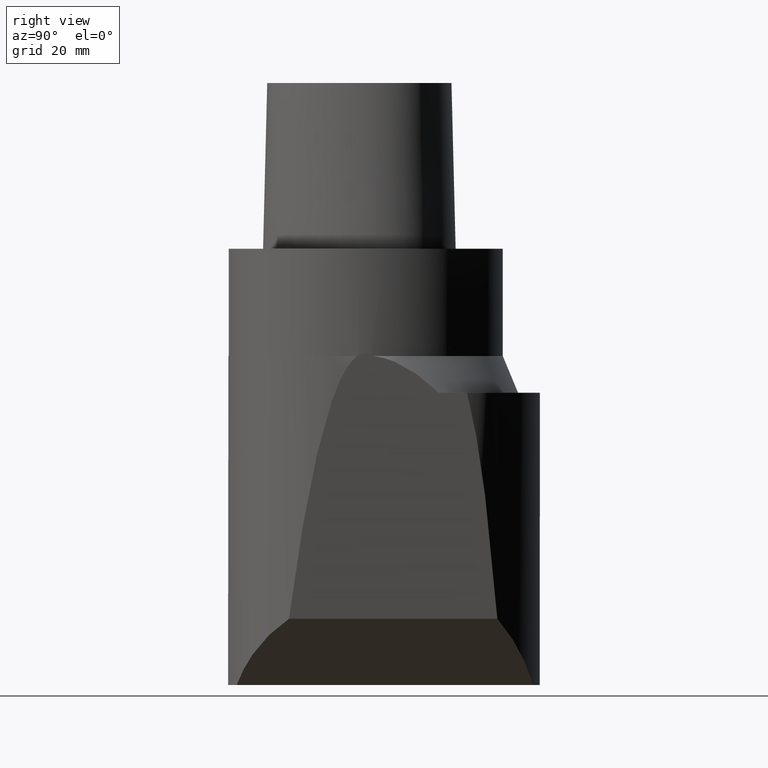
[diagram: clean part render]
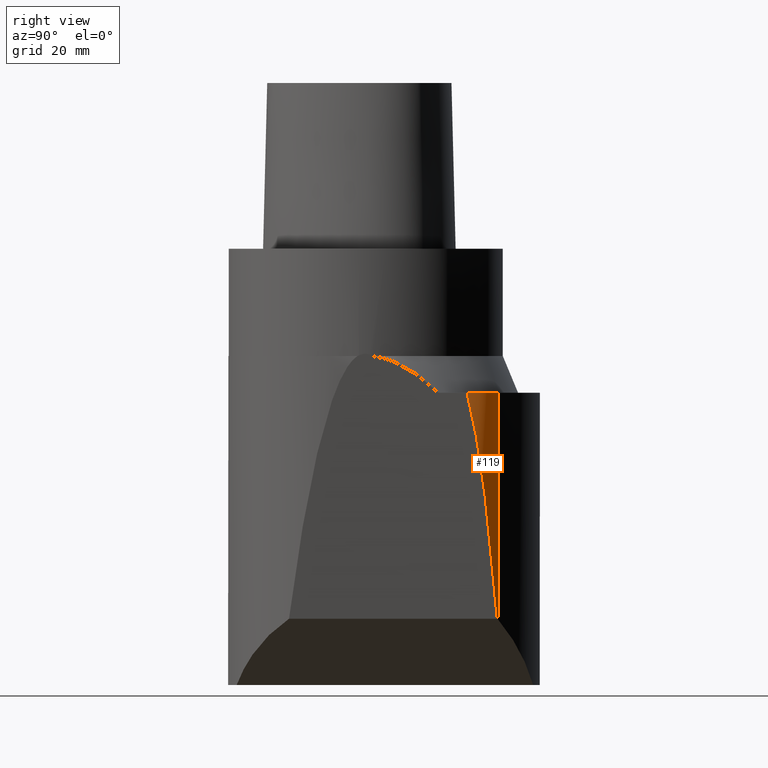
[diagram: same view with one face highlighted and labeled with its STEP entity id]
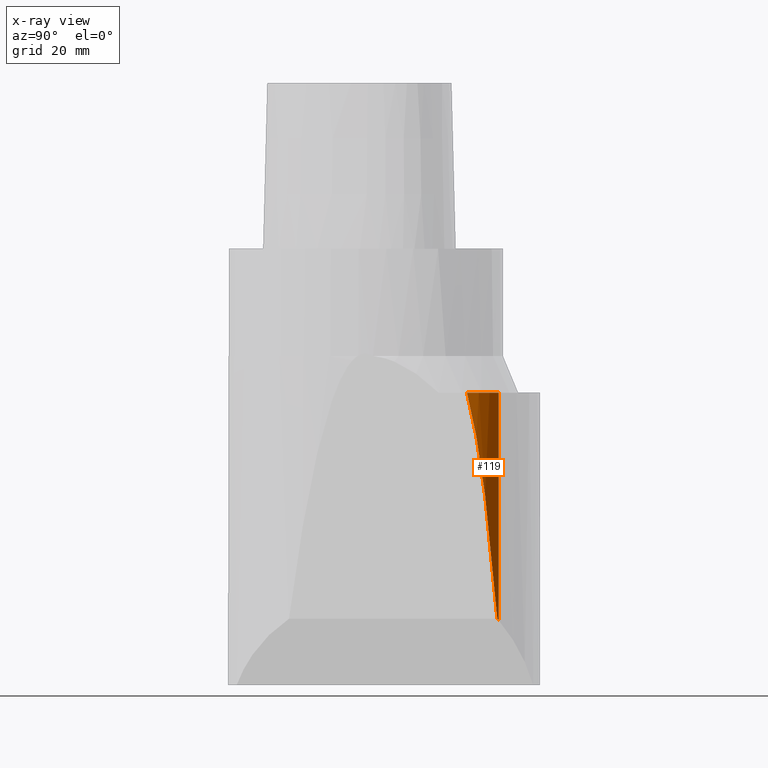
[diagram: x-ray of the same camera — body ghosted, the highlighted face saturated]
A machine part, right view. The second image highlights one B-rep face of the part: STEP entity #119.
The next image is the same camera in x-ray: the body ghosted, the highlighted face saturated — about 0% of this face is hidden behind the body in this view.
In plain terms, the highlighted cylindrical surface (partial cylindrical patch) has radius 16 mm, axis along (0, -0, -1).
Its self-contained STEP definition (entity closure, byte-faithful):
#119=ADVANCED_FACE('240[2]',(#308),#309,.T.);
#149=EDGE_CURVE('240[2]',#353,#354,#355,.F.);
#157=EDGE_CURVE('240[2]',#354,#319,#364,.T.);
#184=EDGE_CURVE('240[2]',#285,#319,#400,.T.);
#218=EDGE_CURVE('240[2]',#353,#285,#439,.T.);
#285=VERTEX_POINT('',#507);
#308=FACE_OUTER_BOUND('',#547,.T.);
#309=CYLINDRICAL_SURFACE('',#548,15.9999999999997);
#319=VERTEX_POINT('',#563);
#353=VERTEX_POINT('',#697);
#354=VERTEX_POINT('',#698);
#355=ELLIPSE('',#699,22.6274169979689,15.9999999999997);
#364=ELLIPSE('',#714,183.579411930717,15.9999999999997);
#400=CIRCLE('',#840,15.9999999999997);
#439=LINE('',#966,#967);
#507=CARTESIAN_POINT('',(25.8333333333352,30.5391370030156,-32.9999999999964));
#547=EDGE_LOOP('',(#1087,#1088,#1089,#1090));
#548=AXIS2_PLACEMENT_3D('',#1091,#1092,#1093);
#563=CARTESIAN_POINT('',(30.7092117608135,23.2913668235292,-32.9999999999964));
#697=CARTESIAN_POINT('',(25.833333333333,30.5391370030147,-85.1666663145511));
#698=CARTESIAN_POINT('',(26.1751225238349,30.2416095337812,-84.8248771240493));
#699=AXIS2_PLACEMENT_3D('',#1126,#1127,#1128);
#714=AXIS2_PLACEMENT_3D('',#1134,#1135,#1136);
#840=AXIS2_PLACEMENT_3D('',#1180,#1181,#1182);
#966=CARTESIAN_POINT('',(25.833333333333,30.5391370030147,-244.999999822605));
#967=VECTOR('',#1235,1.0);
#1087=ORIENTED_EDGE('',*,*,#157,.F.);
#1088=ORIENTED_EDGE('',*,*,#149,.F.);
#1089=ORIENTED_EDGE('',*,*,#218,.T.);
#1090=ORIENTED_EDGE('',*,*,#184,.T.);
#1091=CARTESIAN_POINT('',(15.5,18.323482201809,-244.999999822605));
#1092=DIRECTION('',(6.12323399573677E-017,-1.22464679914735E-016,-1.0));
#1093=DIRECTION('',(-1.0,-2.44929359829471E-016,-6.12323399573677E-017));
#1126=CARTESIAN_POINT('',(15.5,18.323482201809,-95.499999647884));
#1127=DIRECTION('',(-0.707106781186542,1.237638486879E-030,0.707106781186553));
#1128=DIRECTION('',(-0.707106781186553,-2.59786816870649E-016,-0.707106781186542));
#1134=CARTESIAN_POINT('',(15.5,18.323482201809,-206.84208590987));
#1135=DIRECTION('',(0.996194698091746,1.11325164696239E-016,-0.0871557427476567));
#1136=DIRECTION('',(-0.0871557427476567,-1.43345665111208E-016,-0.996194698091746));
#1180=CARTESIAN_POINT('',(15.5,18.3234822018091,-32.9999999999964));
#1181=DIRECTION('',(6.12323399573677E-017,-1.22464679914735E-016,-1.0));
#1182=DIRECTION('',(-1.0,-2.44929359829471E-016,-6.12323399573677E-017));
#1235=DIRECTION('',(-6.12323399573677E-017,1.22464679914735E-016,1.0));